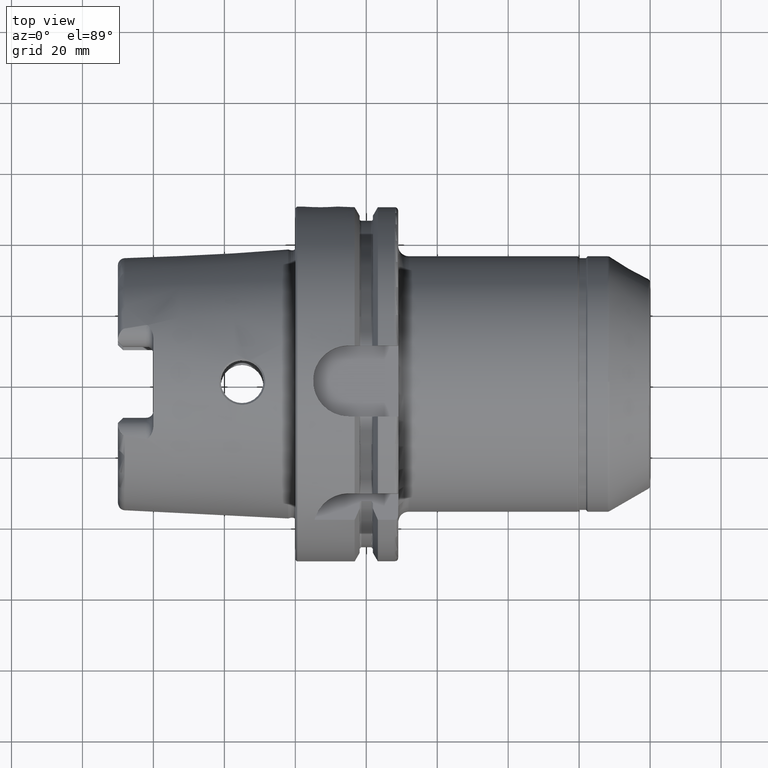
[diagram: clean part render]
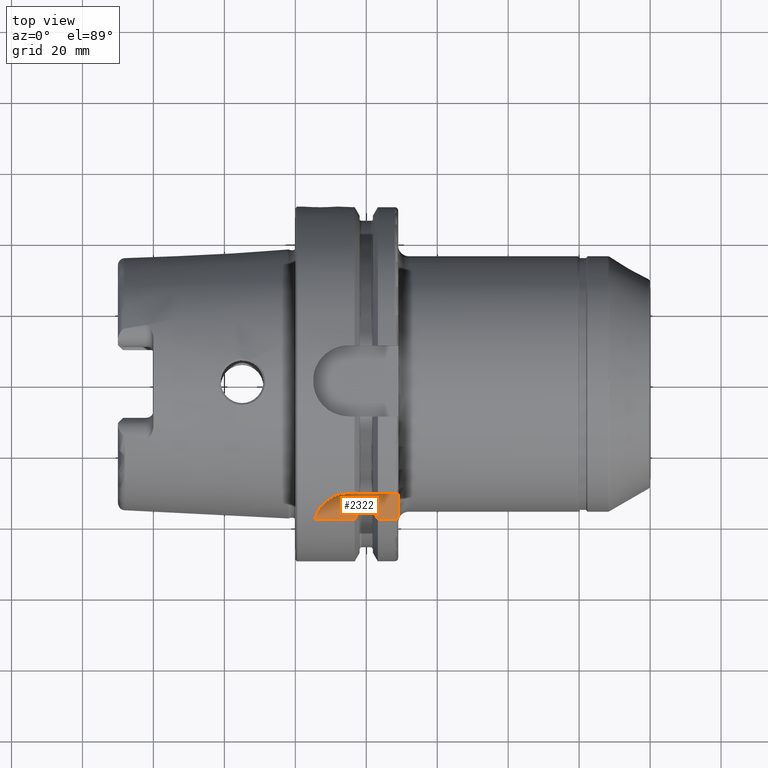
[diagram: same view with one face highlighted and labeled with its STEP entity id]
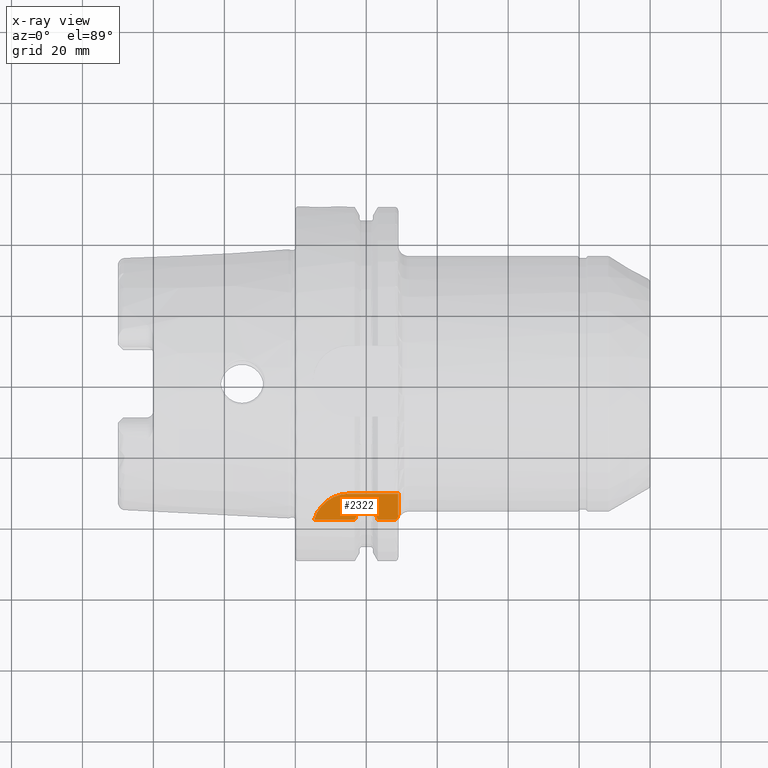
[diagram: x-ray of the same camera — body ghosted, the highlighted face saturated]
A machine part, top view. The second image highlights one B-rep face of the part: STEP entity #2322.
The next image is the same camera in x-ray: the body ghosted, the highlighted face saturated — about 0% of this face is hidden behind the body in this view.
In plain terms, the highlighted planar face has unit normal (0, 0, 1).
Its self-contained STEP definition (entity closure, byte-faithful):
#19=(
BOUNDED_CURVE()
B_SPLINE_CURVE(2,(#4532,#4533,#4534),.UNSPECIFIED.,.F.,.F.)
B_SPLINE_CURVE_WITH_KNOTS((3,3),(0.,0.343884390880417),.UNSPECIFIED.)
CURVE()
GEOMETRIC_REPRESENTATION_ITEM()
RATIONAL_B_SPLINE_CURVE((1.,1.00052016257104,1.))
REPRESENTATION_ITEM('')
);
#20=(
BOUNDED_CURVE()
B_SPLINE_CURVE(2,(#4564,#4565,#4566),.UNSPECIFIED.,.F.,.F.)
B_SPLINE_CURVE_WITH_KNOTS((3,3),(0.,0.343884390880419),.UNSPECIFIED.)
CURVE()
GEOMETRIC_REPRESENTATION_ITEM()
RATIONAL_B_SPLINE_CURVE((1.,1.00052016257005,1.))
REPRESENTATION_ITEM('')
);
#62=B_SPLINE_CURVE_WITH_KNOTS('',3,(#4538,#4539,#4540,#4541,#4542,#4543,
#4544,#4545,#4546,#4547),.UNSPECIFIED.,.F.,.F.,(4,2,2,2,4),(-0.175716275951496,
-0.15902214964786,-0.139262857016594,-0.115342898112829,-0.0876407705892815),
 .UNSPECIFIED.);
#63=B_SPLINE_CURVE_WITH_KNOTS('',3,(#4551,#4552,#4553,#4554,#4555,#4556,
#4557,#4558,#4559,#4560),.UNSPECIFIED.,.F.,.F.,(4,2,2,2,4),(0.0876407705892814,
0.115342898112828,0.139262857016592,0.15902214964786,0.175716275951495),
 .UNSPECIFIED.);
#64=B_SPLINE_CURVE_WITH_KNOTS('',3,(#4569,#4570,#4571,#4572,#4573,#4574,
#4575,#4576,#4577,#4578),.UNSPECIFIED.,.F.,.F.,(4,2,2,2,4),(-0.170825962094808,
-0.118543630596578,-0.0729156509442915,-0.0340271521483428,0.),
 .UNSPECIFIED.);
#118=PLANE('',#2572);
#165=LINE('',#3606,#274);
#207=LINE('',#4479,#316);
#212=LINE('',#4530,#321);
#213=LINE('',#4536,#322);
#214=LINE('',#4549,#323);
#215=LINE('',#4562,#324);
#216=LINE('',#4568,#325);
#274=VECTOR('',#2876,10.);
#316=VECTOR('',#3094,10.);
#321=VECTOR('',#3101,10.);
#322=VECTOR('',#3102,10.);
#323=VECTOR('',#3103,10.);
#324=VECTOR('',#3104,10.);
#325=VECTOR('',#3105,10.);
#460=FACE_OUTER_BOUND('',#590,.T.);
#590=EDGE_LOOP('',(#1814,#1815,#1816,#1817,#1818,#1819,#1820,#1821,#1822,
#1823,#1824,#1825,#1826));
#772=CIRCLE('',#2570,10.);
#905=VERTEX_POINT('',#3604);
#906=VERTEX_POINT('',#3605);
#1004=VERTEX_POINT('',#4459);
#1006=VERTEX_POINT('',#4473);
#1016=VERTEX_POINT('',#4529);
#1017=VERTEX_POINT('',#4531);
#1018=VERTEX_POINT('',#4535);
#1019=VERTEX_POINT('',#4537);
#1020=VERTEX_POINT('',#4548);
#1021=VERTEX_POINT('',#4550);
#1022=VERTEX_POINT('',#4561);
#1023=VERTEX_POINT('',#4563);
#1024=VERTEX_POINT('',#4567);
#1176=EDGE_CURVE('',#905,#906,#165,.T.);
#1304=EDGE_CURVE('',#1006,#1004,#772,.T.);
#1307=EDGE_CURVE('',#905,#1006,#207,.T.);
#1317=EDGE_CURVE('',#1016,#1004,#212,.T.);
#1318=EDGE_CURVE('',#1017,#1016,#19,.T.);
#1319=EDGE_CURVE('',#1018,#1017,#213,.T.);
#1320=EDGE_CURVE('',#1019,#1018,#62,.T.);
#1321=EDGE_CURVE('',#1020,#1019,#214,.T.);
#1322=EDGE_CURVE('',#1021,#1020,#63,.T.);
#1323=EDGE_CURVE('',#1022,#1021,#215,.T.);
#1324=EDGE_CURVE('',#1023,#1022,#20,.T.);
#1325=EDGE_CURVE('',#1024,#1023,#216,.T.);
#1326=EDGE_CURVE('',#906,#1024,#64,.T.);
#1814=ORIENTED_EDGE('',*,*,#1317,.F.);
#1815=ORIENTED_EDGE('',*,*,#1318,.F.);
#1816=ORIENTED_EDGE('',*,*,#1319,.F.);
#1817=ORIENTED_EDGE('',*,*,#1320,.F.);
#1818=ORIENTED_EDGE('',*,*,#1321,.F.);
#1819=ORIENTED_EDGE('',*,*,#1322,.F.);
#1820=ORIENTED_EDGE('',*,*,#1323,.F.);
#1821=ORIENTED_EDGE('',*,*,#1324,.F.);
#1822=ORIENTED_EDGE('',*,*,#1325,.F.);
#1823=ORIENTED_EDGE('',*,*,#1326,.F.);
#1824=ORIENTED_EDGE('',*,*,#1176,.F.);
#1825=ORIENTED_EDGE('',*,*,#1307,.T.);
#1826=ORIENTED_EDGE('',*,*,#1304,.T.);
#2322=ADVANCED_FACE('',(#460),#118,.T.);
#2570=AXIS2_PLACEMENT_3D('',#4474,#3088,#3089);
#2572=AXIS2_PLACEMENT_3D('',#4528,#3099,#3100);
#2876=DIRECTION('',(0.,-1.,0.));
#3088=DIRECTION('center_axis',(0.,0.,1.));
#3089=DIRECTION('ref_axis',(0.,1.,0.));
#3094=DIRECTION('',(-1.,3.17206578464331E-16,0.));
#3099=DIRECTION('center_axis',(0.,0.,1.));
#3100=DIRECTION('ref_axis',(1.,0.,0.));
#3101=DIRECTION('',(-1.,0.,0.));
#3102=DIRECTION('',(0.,-1.,0.));
#3103=DIRECTION('',(-1.,0.,0.));
#3104=DIRECTION('',(0.,1.,0.));
#3105=DIRECTION('',(-1.,0.,0.));
#3604=CARTESIAN_POINT('',(29.,-31.5,31.5));
#3605=CARTESIAN_POINT('',(29.,-37.5333185316726,31.5));
#3606=CARTESIAN_POINT('',(29.,-18.25,31.5));
#4459=CARTESIAN_POINT('',(5.36310214079494,-38.8297566307078,31.5));
#4473=CARTESIAN_POINT('',(15.,-31.5,31.5));
#4474=CARTESIAN_POINT('Origin',(15.,-41.5,31.5));
#4479=CARTESIAN_POINT('',(29.,-31.5,31.5));
#4528=CARTESIAN_POINT('Origin',(17.,-36.5,31.5));
#4529=CARTESIAN_POINT('',(16.7379709790786,-38.8297566307078,31.5));
#4530=CARTESIAN_POINT('',(8.61898548953931,-38.8297566307078,31.5));
#4531=CARTESIAN_POINT('',(18.125,-35.6830642593065,31.5));
#4532=CARTESIAN_POINT('Ctrl Pts',(18.125,-35.6830642593066,31.5));
#4533=CARTESIAN_POINT('Ctrl Pts',(17.4607727557241,-37.2176818849689,31.5));
#4534=CARTESIAN_POINT('Ctrl Pts',(16.7379709790786,-38.8297566307079,31.5));
#4535=CARTESIAN_POINT('',(18.125,-34.2052627529741,31.5));
#4536=CARTESIAN_POINT('',(18.125,5.,31.5));
#4537=CARTESIAN_POINT('',(18.625,-33.5223805837235,31.5));
#4538=CARTESIAN_POINT('Ctrl Pts',(18.625,-33.5223805837235,31.5));
#4539=CARTESIAN_POINT('Ctrl Pts',(18.5693529123212,-33.5223805837235,31.5));
#4540=CARTESIAN_POINT('Ctrl Pts',(18.5045806209474,-33.538617945543,31.5));
#4541=CARTESIAN_POINT('Ctrl Pts',(18.3957531993943,-33.5926698815421,31.5));
#4542=CARTESIAN_POINT('Ctrl Pts',(18.3354671583148,-33.6437821851056,31.5));
#4543=CARTESIAN_POINT('Ctrl Pts',(18.2428076522704,-33.7560891280603,31.5));
#4544=CARTESIAN_POINT('Ctrl Pts',(18.1981986617216,-33.8407334953009,31.5));
#4545=CARTESIAN_POINT('Ctrl Pts',(18.1422893312478,-34.003470946295,31.5));
#4546=CARTESIAN_POINT('Ctrl Pts',(18.125,-34.1129223278956,31.5));
#4547=CARTESIAN_POINT('Ctrl Pts',(18.125,-34.2052627529741,31.5));
#4548=CARTESIAN_POINT('',(21.375,-33.5223805837235,31.5));
#4549=CARTESIAN_POINT('',(20.,-33.5223805837235,31.5));
#4550=CARTESIAN_POINT('',(21.875,-34.2052627529741,31.5));
#4551=CARTESIAN_POINT('Ctrl Pts',(21.875,-34.2052627529741,31.5));
#4552=CARTESIAN_POINT('Ctrl Pts',(21.875,-34.1129223278957,31.5));
#4553=CARTESIAN_POINT('Ctrl Pts',(21.8577106687523,-34.003470946295,31.5));
#4554=CARTESIAN_POINT('Ctrl Pts',(21.8018013382784,-33.8407334953009,31.5));
#4555=CARTESIAN_POINT('Ctrl Pts',(21.7571923477296,-33.7560891280604,31.5));
#4556=CARTESIAN_POINT('Ctrl Pts',(21.6645328416852,-33.6437821851056,31.5));
#4557=CARTESIAN_POINT('Ctrl Pts',(21.6042468006057,-33.5926698815421,31.5));
#4558=CARTESIAN_POINT('Ctrl Pts',(21.4954193790526,-33.538617945543,31.5));
#4559=CARTESIAN_POINT('Ctrl Pts',(21.4306470876788,-33.5223805837235,31.5));
#4560=CARTESIAN_POINT('Ctrl Pts',(21.375,-33.5223805837235,31.5));
#4561=CARTESIAN_POINT('',(21.875,-35.6830642593065,31.5));
#4562=CARTESIAN_POINT('',(21.875,5.54879763209582,31.5));
#4563=CARTESIAN_POINT('',(23.2620290209214,-38.8297566307078,31.5));
#4564=CARTESIAN_POINT('Ctrl Pts',(23.2620290209214,-38.8297566307078,31.5));
#4565=CARTESIAN_POINT('Ctrl Pts',(22.5392272442767,-37.2176818849707,31.5));
#4566=CARTESIAN_POINT('Ctrl Pts',(21.875,-35.6830642593065,31.5));
#4567=CARTESIAN_POINT('',(28.,-38.8297566307078,31.5));
#4568=CARTESIAN_POINT('',(25.6310145104607,-38.8297566307078,31.5));
#4569=CARTESIAN_POINT('Ctrl Pts',(29.,-37.5333185316726,31.5));
#4570=CARTESIAN_POINT('Ctrl Pts',(29.,-37.7075929700001,31.5));
#4571=CARTESIAN_POINT('Ctrl Pts',(28.9664820083304,-37.9140187901503,31.5));
#4572=CARTESIAN_POINT('Ctrl Pts',(28.8572425149189,-38.2215616508799,31.5));
#4573=CARTESIAN_POINT('Ctrl Pts',(28.7693181429129,-38.3814988424326,31.5));
#4574=CARTESIAN_POINT('Ctrl Pts',(28.5860354601279,-38.5954486383736,31.5));
#4575=CARTESIAN_POINT('Ctrl Pts',(28.4650491410143,-38.6932205975694,31.5));
#4576=CARTESIAN_POINT('Ctrl Pts',(28.2458099245109,-38.7981421072727,31.5));
#4577=CARTESIAN_POINT('Ctrl Pts',(28.1134238404945,-38.8297566307078,31.5));
#4578=CARTESIAN_POINT('Ctrl Pts',(28.,-38.8297566307078,31.5));